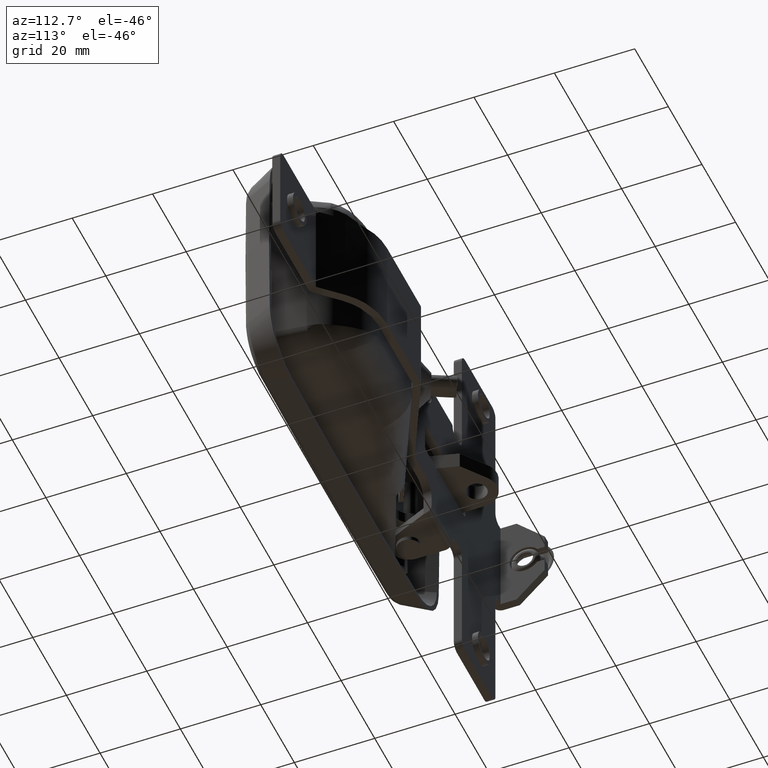
[diagram: clean part render]
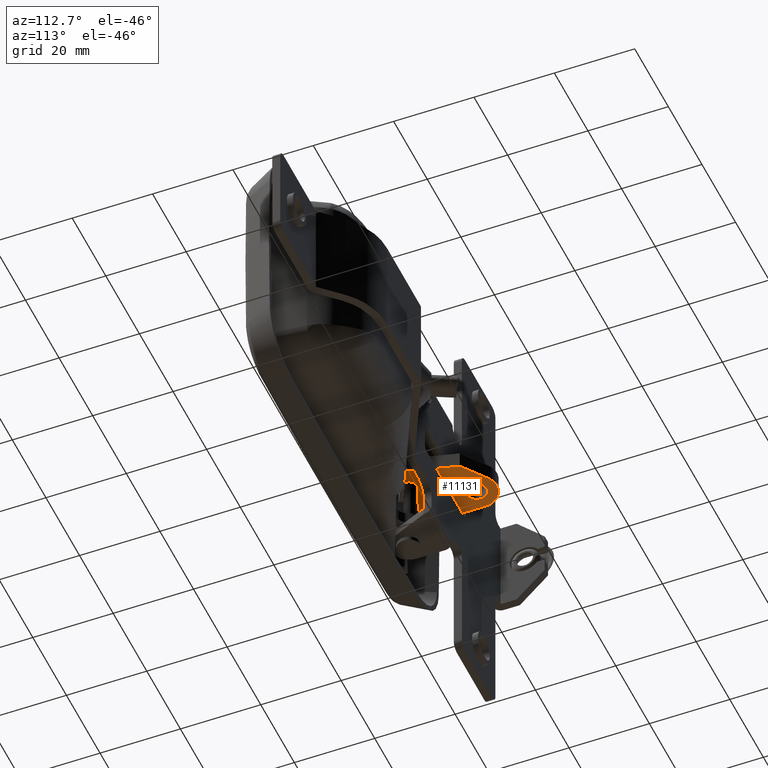
[diagram: same view with one face highlighted and labeled with its STEP entity id]
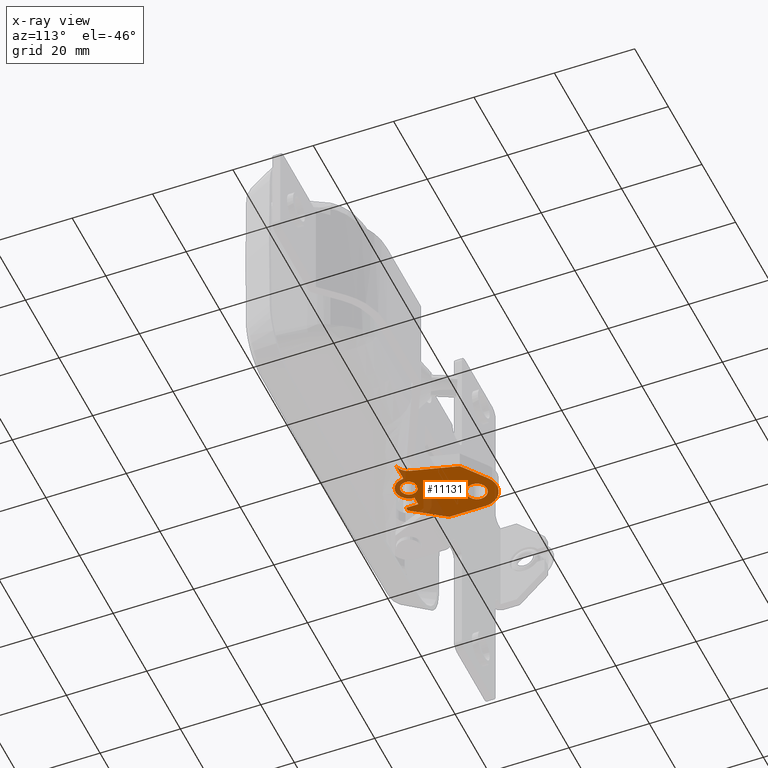
[diagram: x-ray of the same camera — body ghosted, the highlighted face saturated]
A machine part, auxiliary view. The second image highlights one B-rep face of the part: STEP entity #11131.
The next image is the same camera in x-ray: the body ghosted, the highlighted face saturated — about 15% of this face is hidden behind the body in this view.
In plain terms, the highlighted face is a freeform B-spline surface patch.
Its self-contained STEP definition (entity closure, byte-faithful):
#4137=CARTESIAN_POINT('',(-33.987017128320780,-1.411126279857533,-2.100000000000001));
#4138=VERTEX_POINT('',#4137);
#4144=CARTESIAN_POINT('',(-34.549999999999997,0.0,-2.100000000000000));
#4145=VERTEX_POINT('',#4144);
#4146=CARTESIAN_POINT('',(-34.549999999999997,0.0,-2.100000000000000));
#4147=CARTESIAN_POINT('',(-34.550075328717433,-0.194557177980062,-2.100000000000002));
#4148=CARTESIAN_POINT('',(-34.496523223090250,-0.567407111961404,-2.099999999999998));
#4149=CARTESIAN_POINT('',(-34.285466710424302,-1.046174011601779,-2.100000000000007));
#4150=CARTESIAN_POINT('',(-34.087468858147837,-1.305297735936521,-2.099999999999997));
#4151=CARTESIAN_POINT('',(-33.987017128320780,-1.411126279857533,-2.100000000000001));
#4152=B_SPLINE_CURVE_WITH_KNOTS('',3,(#4146,#4147,#4148,#4149,#4150,#4151),.UNSPECIFIED.,.F.,.U.,(4,1,1,4),(0.000000058353667,0.583662890359630,1.118684713609827,1.556433401435252),.UNSPECIFIED.);
#4153=EDGE_CURVE('',#4145,#4138,#4152,.T.);
#4155=CARTESIAN_POINT('',(-32.500002620543412,2.049999999998326,-2.100000000000000));
#4156=VERTEX_POINT('',#4155);
#4157=CARTESIAN_POINT('',(-32.500002620543412,2.049999999998326,-2.100000000000000));
#4158=CARTESIAN_POINT('',(-32.718038678165001,2.050108384398008,-2.100000000000000));
#4159=CARTESIAN_POINT('',(-33.154058090621938,1.979823436100633,-2.100000000000001));
#4160=CARTESIAN_POINT('',(-33.727005226676368,1.682580373809388,-2.099999999999997));
#4161=CARTESIAN_POINT('',(-34.134564017089630,1.274929081171829,-2.100000000000006));
#4162=CARTESIAN_POINT('',(-34.457458284064280,0.720910069460487,-2.099999999999992));
#4163=CARTESIAN_POINT('',(-34.550398192432468,0.285196677919544,-2.100000000000004));
#4164=CARTESIAN_POINT('',(-34.549999999999997,0.0,-2.100000000000000));
#4165=B_SPLINE_CURVE_WITH_KNOTS('',3,(#4157,#4158,#4159,#4160,#4161,#4162,#4163,#4164),.UNSPECIFIED.,.F.,.U.,(4,1,1,1,1,4),(0.000000253760799,0.654096659350402,1.308243458098858,1.911967127465688,2.364840979615892,3.220211798889333),.UNSPECIFIED.);
#4166=EDGE_CURVE('',#4156,#4145,#4165,.T.);
#4168=CARTESIAN_POINT('',(-30.449999999999999,0.0,-2.100000000000000));
#4169=VERTEX_POINT('',#4168);
#4170=CARTESIAN_POINT('',(-30.449999999999999,0.0,-2.100000000000000));
#4171=CARTESIAN_POINT('',(-30.449978304794410,0.184474081307001,-2.100000000000000));
#4172=CARTESIAN_POINT('',(-30.509089210494590,0.620604026816771,-2.100000000000001));
#4173=CARTESIAN_POINT('',(-30.793358410073999,1.203069551090286,-2.100000000000000));
#4174=CARTESIAN_POINT('',(-31.213101159367650,1.622554921036310,-2.100000000000002));
#4175=CARTESIAN_POINT('',(-31.762389156586249,1.951842463305915,-2.100000000000002));
#4176=CARTESIAN_POINT('',(-32.197999553848042,2.050508611986754,-2.099999999999996));
#4177=CARTESIAN_POINT('',(-32.500002620543412,2.049999999998326,-2.100000000000000));
#4178=B_SPLINE_CURVE_WITH_KNOTS('',3,(#4170,#4171,#4172,#4173,#4174,#4175,#4176,#4177),.UNSPECIFIED.,.F.,.U.,(4,1,1,1,1,4),(0.000000250178597,0.553469265169486,1.308244654246811,1.911968882517167,2.314522371605595,3.220214752926187),.UNSPECIFIED.);
#4179=EDGE_CURVE('',#4169,#4156,#4178,.T.);
#4181=CARTESIAN_POINT('',(-31.176228570925350,-1.565289702367814,-2.100000000000000));
#4182=VERTEX_POINT('',#4181);
#4183=CARTESIAN_POINT('',(-31.176228570925350,-1.565289702367814,-2.100000000000000));
#4184=CARTESIAN_POINT('',(-31.020329819680480,-1.433576560987015,-2.100000000000000));
#4185=CARTESIAN_POINT('',(-30.785588923903319,-1.165375614008549,-2.100000000000002));
#4186=CARTESIAN_POINT('',(-30.519570825313330,-0.630682116494599,-2.099999999999997));
#4187=CARTESIAN_POINT('',(-30.449835658323639,-0.241214806341711,-2.100000000000004));
#4188=CARTESIAN_POINT('',(-30.449999999999999,0.0,-2.100000000000000));
#4189=B_SPLINE_CURVE_WITH_KNOTS('',3,(#4183,#4184,#4185,#4186,#4187,#4188),.UNSPECIFIED.,.F.,.U.,(4,1,1,4),(0.000000084531889,0.612255438768851,1.057508174449625,1.781098512111606),.UNSPECIFIED.);
#4190=EDGE_CURVE('',#4182,#4169,#4189,.T.);
#4225=CARTESIAN_POINT('',(-32.499997379456623,-2.049999999998325,-2.100000000000000));
#4226=VERTEX_POINT('',#4225);
#4227=CARTESIAN_POINT('',(-32.499997379456623,-2.049999999998325,-2.100000000000000));
#4228=CARTESIAN_POINT('',(-32.275117090946679,-2.050137063863587,-2.100000000000001));
#4229=CARTESIAN_POINT('',(-31.795530616657508,-1.970228454090407,-2.099999999999999));
#4230=CARTESIAN_POINT('',(-31.370673849964309,-1.730060061500001,-2.100000000000003));
#4231=CARTESIAN_POINT('',(-31.176228570925350,-1.565289702367814,-2.100000000000000));
#4232=B_SPLINE_CURVE_WITH_KNOTS('',3,(#4227,#4228,#4229,#4230,#4231),.UNSPECIFIED.,.F.,.U.,(4,1,4),(0.000000051450042,0.674602870554552,1.439115381903746),.UNSPECIFIED.);
#4233=EDGE_CURVE('',#4226,#4182,#4232,.T.);
#4235=CARTESIAN_POINT('',(-33.987017128320780,-1.411126279857533,-2.100000000000001));
#4236=CARTESIAN_POINT('',(-33.832026144191033,-1.574681964725905,-2.099999999999998));
#4237=CARTESIAN_POINT('',(-33.551497226270442,-1.786153752818953,-2.100000000000005));
#4238=CARTESIAN_POINT('',(-33.037186711916753,-1.999440235569015,-2.099999999999992));
#4239=CARTESIAN_POINT('',(-32.707977931730063,-2.050102978627395,-2.100000000000013));
#4240=CARTESIAN_POINT('',(-32.499997379456623,-2.049999999998325,-2.100000000000000));
#4241=B_SPLINE_CURVE_WITH_KNOTS('',3,(#4235,#4236,#4237,#4238,#4239,#4240),.UNSPECIFIED.,.F.,.U.,(4,1,1,4),(0.000000081378388,0.675925249535015,1.039863478431332,1.663782249806885),.UNSPECIFIED.);
#4242=EDGE_CURVE('',#4138,#4226,#4241,.T.);
#4724=CARTESIAN_POINT('',(-41.312235494770043,12.279113971018770,-2.100000000000000));
#4725=VERTEX_POINT('',#4724);
#4731=CARTESIAN_POINT('',(-41.998800000000003,14.0,-2.100000000000000));
#4732=VERTEX_POINT('',#4731);
#4733=CARTESIAN_POINT('',(-41.998800000000003,14.0,-2.100000000000000));
#4734=CARTESIAN_POINT('',(-41.999211132987170,13.663826810769381,-2.099999999999994));
#4735=CARTESIAN_POINT('',(-41.869085753932893,13.031521132243160,-2.100000000000013));
#4736=CARTESIAN_POINT('',(-41.516580143016462,12.494102302570210,-2.099999999999990));
#4737=CARTESIAN_POINT('',(-41.312235494770043,12.279113971018770,-2.100000000000000));
#4738=B_SPLINE_CURVE_WITH_KNOTS('',3,(#4733,#4734,#4735,#4736,#4737),.UNSPECIFIED.,.F.,.U.,(4,1,4),(0.000000052805685,1.008346561296242,1.898089842900822),.UNSPECIFIED.);
#4739=EDGE_CURVE('',#4732,#4725,#4738,.T.);
#4741=CARTESIAN_POINT('',(-39.498802388525533,16.499999999998860,-2.100000000000000));
#4742=VERTEX_POINT('',#4741);
#4743=CARTESIAN_POINT('',(-39.498802388525533,16.499999999998860,-2.100000000000000));
#4744=CARTESIAN_POINT('',(-39.723788834955350,16.500066681552688,-2.099999999999997));
#4745=CARTESIAN_POINT('',(-40.214663039418802,16.433338152434100,-2.100000000000002));
#4746=CARTESIAN_POINT('',(-40.836152827467693,16.148786373942212,-2.100000000000002));
#4747=CARTESIAN_POINT('',(-41.292682352859941,15.764399925315770,-2.099999999999999));
#4748=CARTESIAN_POINT('',(-41.639072317361929,15.331705967827100,-2.100000000000005));
#4749=CARTESIAN_POINT('',(-41.919753407783020,14.756694627502110,-2.099999999999988));
#4750=CARTESIAN_POINT('',(-41.998931204760787,14.265902881250920,-2.100000000000013));
#4751=CARTESIAN_POINT('',(-41.998800000000003,14.0,-2.100000000000000));
#4752=B_SPLINE_CURVE_WITH_KNOTS('',3,(#4743,#4744,#4745,#4746,#4747,#4748,#4749,#4750,#4751),.UNSPECIFIED.,.F.,.U.,(4,1,1,1,1,1,4),(0.000000217207724,0.674965205115614,1.472686334888661,2.024875772008864,2.454401729513420,3.129409123245939,3.927088014602993),.UNSPECIFIED.);
#4753=EDGE_CURVE('',#4742,#4732,#4752,.T.);
#4755=CARTESIAN_POINT('',(-36.998800000000003,14.0,-2.100000000000000));
#4756=VERTEX_POINT('',#4755);
#4757=CARTESIAN_POINT('',(-36.998800000000003,14.0,-2.100000000000000));
#4758=CARTESIAN_POINT('',(-36.998310026296252,14.347818390979111,-2.100000000000002));
#4759=CARTESIAN_POINT('',(-37.102965059089847,14.838238592136991,-2.099999999999999));
#4760=CARTESIAN_POINT('',(-37.479065765525007,15.521786674835299,-2.100000000000004));
#4761=CARTESIAN_POINT('',(-37.879744123466338,15.942660037436420,-2.099999999999991));
#4762=CARTESIAN_POINT('',(-38.386718824480283,16.254826672214971,-2.100000000000013));
#4763=CARTESIAN_POINT('',(-38.885243945643147,16.447169554142501,-2.099999999999962));
#4764=CARTESIAN_POINT('',(-39.273807916411933,16.500081402704751,-2.100000000000049));
#4765=CARTESIAN_POINT('',(-39.498802388525533,16.499999999998860,-2.100000000000000));
#4766=B_SPLINE_CURVE_WITH_KNOTS('',3,(#4757,#4758,#4759,#4760,#4761,#4762,#4763,#4764,#4765),.UNSPECIFIED.,.F.,.U.,(4,1,1,1,1,1,4),(0.000000213935355,1.043135661099110,1.472687341461687,2.331701538687110,2.761224898455536,3.252123453181105,3.927090707095106),.UNSPECIFIED.);
#4767=EDGE_CURVE('',#4756,#4742,#4766,.T.);
#4769=CARTESIAN_POINT('',(-37.884444431601253,12.091110521010981,-2.100000000000000));
#4770=VERTEX_POINT('',#4769);
#4771=CARTESIAN_POINT('',(-37.884444431601253,12.091110521010981,-2.100000000000000));
#4772=CARTESIAN_POINT('',(-37.728923914271938,12.222559598198259,-2.100000000000001));
#4773=CARTESIAN_POINT('',(-37.465833367988971,12.507049031125330,-2.100000000000001));
#4774=CARTESIAN_POINT('',(-37.106451879038040,13.140517054812131,-2.100000000000001));
#4775=CARTESIAN_POINT('',(-36.998388603087093,13.660546981826110,-2.099999999999997));
#4776=CARTESIAN_POINT('',(-36.998800000000003,14.0,-2.100000000000000));
#4777=B_SPLINE_CURVE_WITH_KNOTS('',3,(#4771,#4772,#4773,#4774,#4775,#4776),.UNSPECIFIED.,.F.,.U.,(4,1,1,4),(0.000000044744273,0.610898957233953,1.153907182760949,2.172070882604082),.UNSPECIFIED.);
#4778=EDGE_CURVE('',#4770,#4756,#4777,.T.);
#4813=CARTESIAN_POINT('',(-39.498797611474487,11.500000000001140,-2.100000000000000));
#4814=VERTEX_POINT('',#4813);
#4815=CARTESIAN_POINT('',(-39.498797611474487,11.500000000001140,-2.100000000000000));
#4816=CARTESIAN_POINT('',(-39.187985148703540,11.499709184774879,-2.100000000000001));
#4817=CARTESIAN_POINT('',(-38.603223914640907,11.610607798150159,-2.099999999999999));
#4818=CARTESIAN_POINT('',(-38.093743396747591,11.913903502280800,-2.100000000000001));
#4819=CARTESIAN_POINT('',(-37.884444431601253,12.091110521010981,-2.100000000000000));
#4820=B_SPLINE_CURVE_WITH_KNOTS('',3,(#4815,#4816,#4817,#4818,#4819),.UNSPECIFIED.,.F.,.U.,(4,1,4),(0.000000048222359,0.932338641602959,1.755019883029457),.UNSPECIFIED.);
#4821=EDGE_CURVE('',#4814,#4770,#4820,.T.);
#4823=CARTESIAN_POINT('',(-41.312235494770043,12.279113971018770,-2.100000000000000));
#4824=CARTESIAN_POINT('',(-41.065239614523463,12.018074510012740,-2.100000000000001));
#4825=CARTESIAN_POINT('',(-40.491915812939482,11.630444579165790,-2.100000000000002));
#4826=CARTESIAN_POINT('',(-39.815864822465649,11.499722088446781,-2.099999999999998));
#4827=CARTESIAN_POINT('',(-39.498797611474487,11.500000000001140,-2.100000000000000));
#4828=B_SPLINE_CURVE_WITH_KNOTS('',3,(#4823,#4824,#4825,#4826,#4827),.UNSPECIFIED.,.F.,.U.,(4,1,4),(0.000000051435034,1.077897000509428,2.029001765668733),.UNSPECIFIED.);
#4829=EDGE_CURVE('',#4725,#4814,#4828,.T.);
#8716=CARTESIAN_POINT('',(-32.538802087072163,-3.299999999999340,-2.100000000000000));
#8717=VERTEX_POINT('',#8716);
#8718=CARTESIAN_POINT('',(-35.838799999999999,-4.041201E-016,-2.100000000000000));
#8719=VERTEX_POINT('',#8718);
#8720=CARTESIAN_POINT('',(-32.538802087072163,-3.299999999999340,-2.100000000000000));
#8721=CARTESIAN_POINT('',(-32.970850592798868,-3.300422202065910,-2.100000000000001));
#8722=CARTESIAN_POINT('',(-33.618441849165727,-3.170938530152205,-2.099999999999999));
#8723=CARTESIAN_POINT('',(-34.384006198338369,-2.761501519884180,-2.099999999999999));
#8724=CARTESIAN_POINT('',(-34.887297827287313,-2.348499709594630,-2.100000000000004));
#8725=CARTESIAN_POINT('',(-35.317544524229191,-1.824241216159081,-2.100000000000000));
#8726=CARTESIAN_POINT('',(-35.717954315543707,-1.052713642281302,-2.099999999999999));
#8727=CARTESIAN_POINT('',(-35.839163684000162,-0.405029063457617,-2.100000000000004));
#8728=CARTESIAN_POINT('',(-35.838799999999999,-4.041201E-016,-2.100000000000000));
#8729=B_SPLINE_CURVE_WITH_KNOTS('',3,(#8720,#8721,#8722,#8723,#8724,#8725,#8726,#8727,#8728),.UNSPECIFIED.,.F.,.U.,(4,1,1,1,1,1,4),(0.000000091207889,1.295939344305357,1.943935975063314,2.591878433875317,3.239820052353378,3.968814546781913,5.183756779967808),.UNSPECIFIED.);
#8730=EDGE_CURVE('',#8717,#8719,#8729,.T.);
#8732=CARTESIAN_POINT('',(-29.238800000000001,0.0,-2.100000000000000));
#8733=VERTEX_POINT('',#8732);
#8734=CARTESIAN_POINT('',(-29.238800000000001,0.0,-2.100000000000000));
#8735=CARTESIAN_POINT('',(-29.238380541205480,-0.432037419484022,-2.099999999999997));
#8736=CARTESIAN_POINT('',(-29.378639965592772,-1.133639283598673,-2.100000000000009));
#8737=CARTESIAN_POINT('',(-29.834693317978900,-1.938295814618294,-2.099999999999992));
#8738=CARTESIAN_POINT('',(-30.271938657265050,-2.420685769380957,-2.100000000000008));
#8739=CARTESIAN_POINT('',(-30.762786354889521,-2.803750186413901,-2.099999999999994));
#8740=CARTESIAN_POINT('',(-31.486082650277279,-3.179164709908733,-2.100000000000006));
#8741=CARTESIAN_POINT('',(-32.133773246951513,-3.300360586728772,-2.099999999999998));
#8742=CARTESIAN_POINT('',(-32.538802087072163,-3.299999999999340,-2.100000000000000));
#8743=B_SPLINE_CURVE_WITH_KNOTS('',3,(#8734,#8735,#8736,#8737,#8738,#8739,#8740,#8741,#8742),.UNSPECIFIED.,.F.,.U.,(4,1,1,1,1,1,4),(0.000000088344895,1.295939930262718,2.105930259891401,2.753856841447920,3.239821522975009,3.968816348077706,5.183759132643256),.UNSPECIFIED.);
#8744=EDGE_CURVE('',#8733,#8717,#8743,.T.);
#8794=CARTESIAN_POINT('',(-38.038800000000002,0.0,-2.100000000000000));
#8795=VERTEX_POINT('',#8794);
#8803=CARTESIAN_POINT('',(-38.038800000000002,0.0,-2.100000000000000));
#8804=CARTESIAN_POINT('',(-35.838799999999999,-4.041201E-016,-2.100000000000000));
#8805=QUASI_UNIFORM_CURVE('',1,(#8803,#8804),.UNSPECIFIED.,.F.,.U.);
#8806=EDGE_CURVE('',#8795,#8719,#8805,.T.);
#9892=CARTESIAN_POINT('',(-38.038800000000002,-3.0,-2.100000000000000));
#9893=VERTEX_POINT('',#9892);
#9899=CARTESIAN_POINT('',(-38.038800000000002,-3.0,-2.100000000000000));
#9900=CARTESIAN_POINT('',(-38.038800000000002,0.0,-2.100000000000000));
#9901=QUASI_UNIFORM_CURVE('',1,(#9899,#9900),.UNSPECIFIED.,.F.,.U.);
#9902=EDGE_CURVE('',#9893,#8795,#9901,.T.);
#10128=CARTESIAN_POINT('',(-27.440835544862502,2.206383629197330,-2.100000000000000));
#10129=VERTEX_POINT('',#10128);
#10135=CARTESIAN_POINT('',(-30.538799999999998,13.500000000000000,-2.100000000000000));
#10136=VERTEX_POINT('',#10135);
#10137=CARTESIAN_POINT('',(-30.538799999999998,13.500000000000000,-2.100000000000000));
#10138=CARTESIAN_POINT('',(-27.440835544862502,2.206383629197330,-2.100000000000000));
#10139=QUASI_UNIFORM_CURVE('',1,(#10137,#10138),.UNSPECIFIED.,.F.,.U.);
#10140=EDGE_CURVE('',#10136,#10129,#10139,.T.);
#10163=CARTESIAN_POINT('',(-36.538799835648902,17.999999876736648,-2.100000000000000));
#10164=VERTEX_POINT('',#10163);
#10165=CARTESIAN_POINT('',(-36.538799835648902,17.999999876736648,-2.100000000000000));
#10166=CARTESIAN_POINT('',(-30.538799999999998,13.500000000000000,-2.100000000000000));
#10167=QUASI_UNIFORM_CURVE('',1,(#10165,#10166),.UNSPECIFIED.,.F.,.U.);
#10168=EDGE_CURVE('',#10164,#10136,#10167,.T.);
#10211=CARTESIAN_POINT('',(-44.538800000000002,14.0,-2.100000000000000));
#10212=VERTEX_POINT('',#10211);
#10213=CARTESIAN_POINT('',(-36.538799835648902,17.999999876736648,-2.100000000000000));
#10214=CARTESIAN_POINT('',(-36.907751961686103,18.276944289807862,-2.100000000000005));
#10215=CARTESIAN_POINT('',(-37.570201203978293,18.642898049317779,-2.099999999999997));
#10216=CARTESIAN_POINT('',(-38.515801248046849,18.914981903255150,-2.100000000000003));
#10217=CARTESIAN_POINT('',(-39.376121914766777,19.022677203906571,-2.099999999999993));
#10218=CARTESIAN_POINT('',(-40.447451285824933,18.970924731714820,-2.099999999999992));
#10219=CARTESIAN_POINT('',(-41.672818549085797,18.592833057737899,-2.100000000000027));
#10220=CARTESIAN_POINT('',(-42.696782905009243,17.927452020282161,-2.099999999999977));
#10221=CARTESIAN_POINT('',(-43.530034102130372,17.082656840066129,-2.100000000000012));
#10222=CARTESIAN_POINT('',(-44.111574620525438,16.141751438015000,-2.099999999999990));
#10223=CARTESIAN_POINT('',(-44.466688976877677,15.037924812002480,-2.100000000000013));
#10224=CARTESIAN_POINT('',(-44.538851363063891,14.345984739737929,-2.099999999999976));
#10225=CARTESIAN_POINT('',(-44.538800000000002,14.0,-2.100000000000000));
#10226=B_SPLINE_CURVE_WITH_KNOTS('',3,(#10213,#10214,#10215,#10216,#10217,#10218,#10219,#10220,#10221,#10222,#10223,#10224,#10225),.UNSPECIFIED.,.F.,.U.,(4,1,1,1,1,1,1,1,1,1,4),(0.000000249633869,1.383940493920969,2.248923161337094,2.940906646452090,3.978867971003230,5.449349573510626,6.746729132843808,7.611723130030041,8.995715101766090,10.033662957905211,11.071625421371190),.UNSPECIFIED.);
#10227=EDGE_CURVE('',#10164,#10212,#10226,.T.);
#10250=CARTESIAN_POINT('',(-44.538800000000002,4.999999999999800,-2.100000000000000));
#10251=VERTEX_POINT('',#10250);
#10252=CARTESIAN_POINT('',(-44.538800000000002,4.999999999999800,-2.100000000000000));
#10253=CARTESIAN_POINT('',(-44.538800000000002,14.0,-2.100000000000000));
#10254=QUASI_UNIFORM_CURVE('',1,(#10252,#10253),.UNSPECIFIED.,.F.,.U.);
#10255=EDGE_CURVE('',#10251,#10212,#10254,.T.);
#10293=CARTESIAN_POINT('',(-24.547710408268198,0.0,-2.100000000000000));
#10294=VERTEX_POINT('',#10293);
#10300=CARTESIAN_POINT('',(-27.440835544862502,2.206383629197330,-2.100000000000000));
#10301=CARTESIAN_POINT('',(-27.376262323792410,1.970739609046825,-2.100000000000000));
#10302=CARTESIAN_POINT('',(-27.204635005808299,1.553369494591060,-2.100000000000002));
#10303=CARTESIAN_POINT('',(-26.862753505430781,1.068196852148446,-2.100000000000001));
#10304=CARTESIAN_POINT('',(-26.457987787211589,0.664663734295239,-2.099999999999995));
#10305=CARTESIAN_POINT('',(-26.035444365013589,0.375193461139050,-2.100000000000001));
#10306=CARTESIAN_POINT('',(-25.382343750983448,0.085550401555388,-2.100000000000001));
#10307=CARTESIAN_POINT('',(-24.893888296491610,-0.000274637987474,-2.100000000000001));
#10308=CARTESIAN_POINT('',(-24.547710408268198,0.0,-2.100000000000000));
#10309=B_SPLINE_CURVE_WITH_KNOTS('',3,(#10300,#10301,#10302,#10303,#10304,#10305,#10306,#10307,#10308),.UNSPECIFIED.,.F.,.U.,(4,1,1,1,1,1,4),(0.000000148225610,0.732987235651427,1.343831977816337,1.771421833432371,2.443296291125606,2.870875482629497,3.909279562188821),.UNSPECIFIED.);
#10310=EDGE_CURVE('',#10129,#10294,#10309,.T.);
#10552=CARTESIAN_POINT('',(-38.978480000000012,-3.0,-2.100000000000000));
#10553=VERTEX_POINT('',#10552);
#10554=CARTESIAN_POINT('',(-38.978480000000012,-3.0,-2.100000000000000));
#10555=CARTESIAN_POINT('',(-44.538800000000002,4.999999999999800,-2.100000000000000));
#10556=QUASI_UNIFORM_CURVE('',1,(#10554,#10555),.UNSPECIFIED.,.F.,.U.);
#10557=EDGE_CURVE('',#10553,#10251,#10556,.T.);
#10817=CARTESIAN_POINT('',(-24.547710408268198,0.0,-2.100000000000000));
#10818=CARTESIAN_POINT('',(-29.238800000000001,0.0,-2.100000000000000));
#10819=QUASI_UNIFORM_CURVE('',1,(#10817,#10818),.UNSPECIFIED.,.F.,.U.);
#10820=EDGE_CURVE('',#10294,#8733,#10819,.T.);
#11092=CARTESIAN_POINT('',(-45.537354135712206,-4.413831233641361,-2.100000000000000));
#11093=CARTESIAN_POINT('',(-23.549155021416109,-4.413831233641361,-2.100000000000000));
#11094=CARTESIAN_POINT('',(-45.537354135712206,20.112756293441130,-2.100000000000000));
#11095=CARTESIAN_POINT('',(-23.549155021416109,20.112756293441130,-2.100000000000000));
#11096=B_SPLINE_SURFACE_WITH_KNOTS('',1,1,((#11092,#11094),(#11093,#11095)),.UNSPECIFIED.,.F.,.F.,.U.,(2,2),(2,2),(0.041708366239443,0.958291685914621),(0.041708326016739,0.958291875148937),.UNSPECIFIED.);
#11097=ORIENTED_EDGE('',*,*,#10820,.T.);
#11098=ORIENTED_EDGE('',*,*,#8744,.T.);
#11099=ORIENTED_EDGE('',*,*,#8730,.T.);
#11100=ORIENTED_EDGE('',*,*,#8806,.F.);
#11101=ORIENTED_EDGE('',*,*,#9902,.F.);
#11102=CARTESIAN_POINT('',(-38.038800000000002,-3.0,-2.100000000000000));
#11103=CARTESIAN_POINT('',(-38.978480000000012,-3.0,-2.100000000000000));
#11104=QUASI_UNIFORM_CURVE('',1,(#11102,#11103),.UNSPECIFIED.,.F.,.U.);
#11105=EDGE_CURVE('',#9893,#10553,#11104,.T.);
#11106=ORIENTED_EDGE('',*,*,#11105,.T.);
#11107=ORIENTED_EDGE('',*,*,#10557,.T.);
#11108=ORIENTED_EDGE('',*,*,#10255,.T.);
#11109=ORIENTED_EDGE('',*,*,#10227,.F.);
#11110=ORIENTED_EDGE('',*,*,#10168,.T.);
#11111=ORIENTED_EDGE('',*,*,#10140,.T.);
#11112=ORIENTED_EDGE('',*,*,#10310,.T.);
#11113=EDGE_LOOP('',(#11097,#11098,#11099,#11100,#11101,#11106,#11107,#11108,#11109,#11110,#11111,#11112));
#11114=FACE_OUTER_BOUND('',#11113,.T.);
#11115=ORIENTED_EDGE('',*,*,#4179,.T.);
#11116=ORIENTED_EDGE('',*,*,#4166,.T.);
#11117=ORIENTED_EDGE('',*,*,#4153,.T.);
#11118=ORIENTED_EDGE('',*,*,#4242,.T.);
#11119=ORIENTED_EDGE('',*,*,#4233,.T.);
#11120=ORIENTED_EDGE('',*,*,#4190,.T.);
#11121=EDGE_LOOP('',(#11115,#11116,#11117,#11118,#11119,#11120));
#11122=FACE_BOUND('',#11121,.T.);
#11123=ORIENTED_EDGE('',*,*,#4767,.T.);
#11124=ORIENTED_EDGE('',*,*,#4753,.T.);
#11125=ORIENTED_EDGE('',*,*,#4739,.T.);
#11126=ORIENTED_EDGE('',*,*,#4829,.T.);
#11127=ORIENTED_EDGE('',*,*,#4821,.T.);
#11128=ORIENTED_EDGE('',*,*,#4778,.T.);
#11129=EDGE_LOOP('',(#11123,#11124,#11125,#11126,#11127,#11128));
#11130=FACE_BOUND('',#11129,.T.);
#11131=ADVANCED_FACE('',(#11114,#11122,#11130),#11096,.F.);